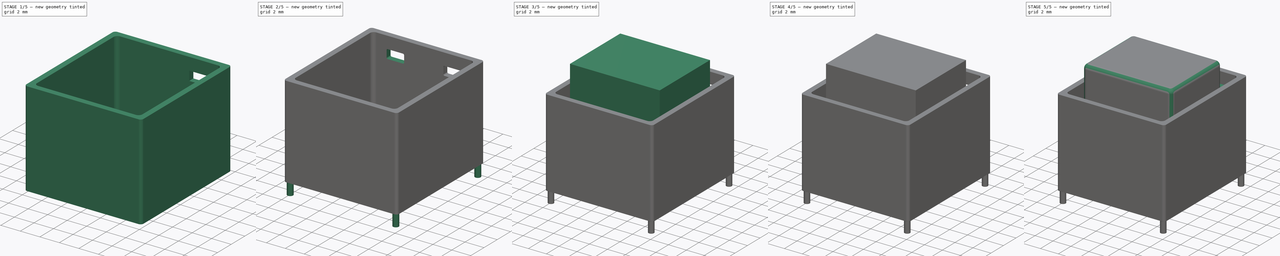
[diagram: build sequence overview — one tinted view per stage of 5, left to right]
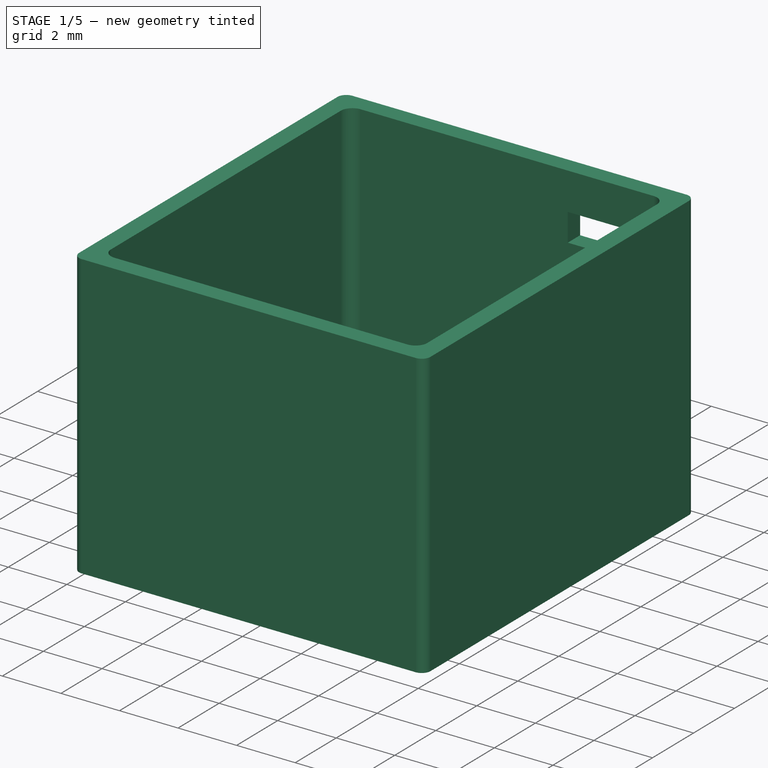
[diagram: stage 1 of 5 — iso view after this stage's code; geometry added in this stage tinted green]
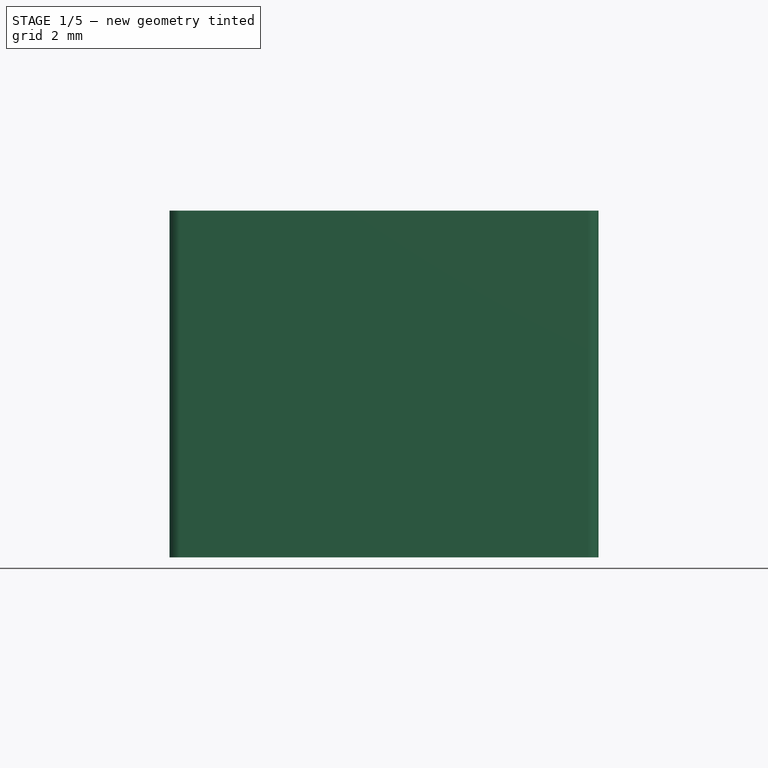
[diagram: stage 1 of 5 — front view after this stage's code; geometry added in this stage tinted green]
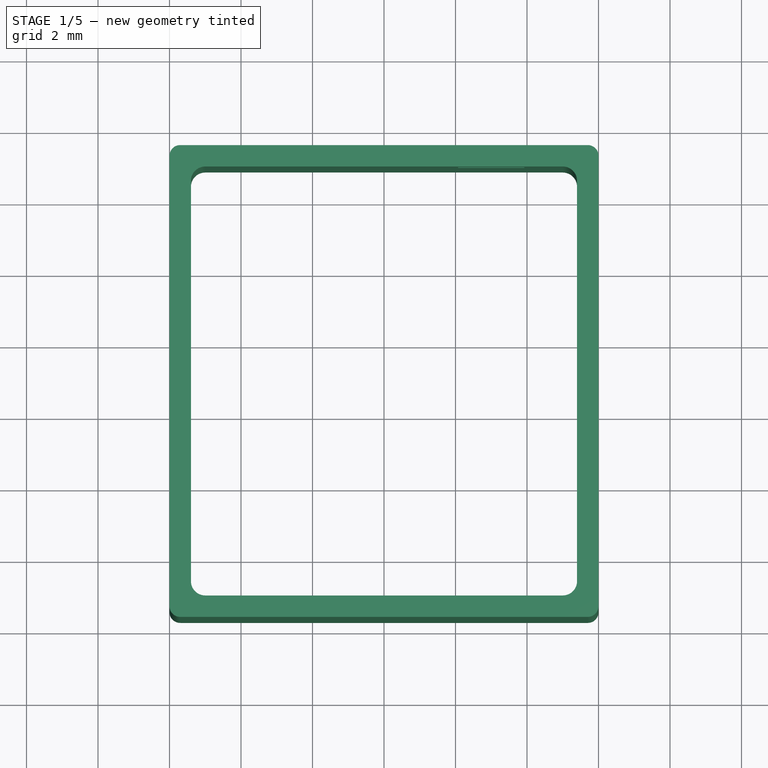
[diagram: stage 1 of 5 — top view after this stage's code; geometry added in this stage tinted green]
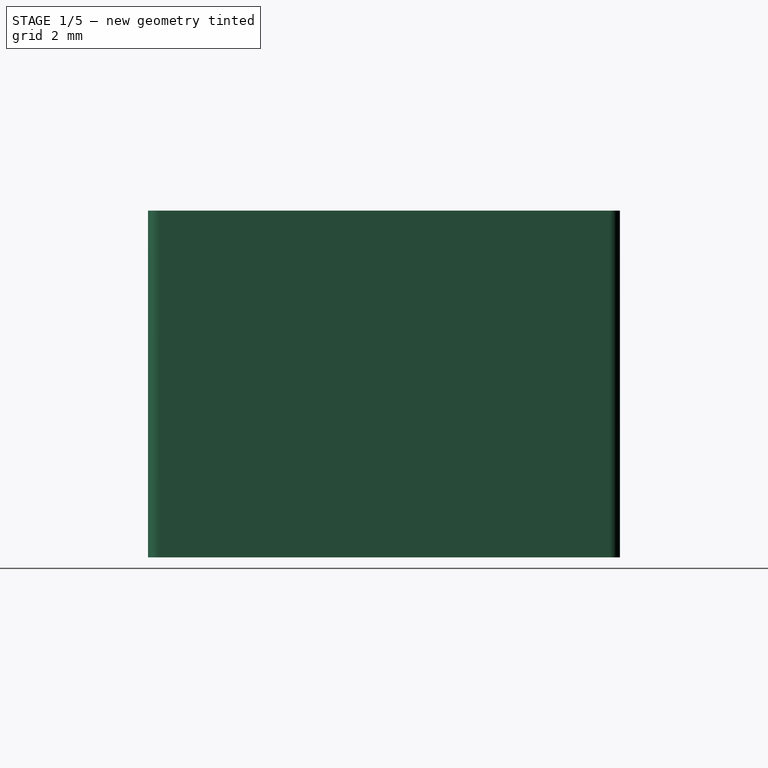
[diagram: stage 1 of 5 — right view after this stage's code; geometry added in this stage tinted green]
FCSTD DOCUMENT  (FreeCAD 0.18R16146 (Git))
Label: LED_switch_10x8
License: All rights reserved
LicenseURL: http://en.wikipedia.org/wiki/All_rights_reserved
objects: PartDesign::Fillet×9, Sketcher::SketchObject×8, PartDesign::Pad×5, PartDesign::Pocket×3, Part::Feature×2, PartDesign::Mirrored×2, PartDesign::Body×2, PartDesign::Plane×1
note: 40 computed .brp shape members not serialized (recipe doc carries the construction recipe); baked Part::Feature solids carry a one-line shape summary decoded from their .brp

FEATURE [PartDesign::Body] Body  label="Stößel"
  Group = -> [DatumPlane,Sketch,Pad,Sketch001,Pocket,Sketch002,Pocket001,Sketch003,Pad001,Fillet,Fillet001,Fillet002,Fillet003,Sketch004,Pad002,Mirrored,Fillet004]
  Origin = -> Origin
  Tip = -> Fillet004
FEATURE [Sketcher::SketchObject] Sketch005
  MapMode = 5
  Support = -> [XY_Plane001]
  sketch-geometry (9):
    g0: LineSegment StartX=-5.4 StartY=4.9 StartZ=0 EndX=5.4 EndY=4.9 EndZ=0
    g1: LineSegment StartX=5.4 StartY=4.9 StartZ=0 EndX=5.4 EndY=-7.1 EndZ=0
    g2: LineSegment StartX=5.4 StartY=-7.1 StartZ=0 EndX=-5.4 EndY=-7.1 EndZ=0
    g3: LineSegment StartX=-5.4 StartY=-7.1 StartZ=0 EndX=-5.4 EndY=4.9 EndZ=0
    g4: GeomPoint X=0 Y=-1.1 Z=0
    g5: LineSegment StartX=-6 StartY=5.5 StartZ=0 EndX=6 EndY=5.5 EndZ=0
    g6: LineSegment StartX=6 StartY=5.5 StartZ=0 EndX=6 EndY=-7.7 EndZ=0
    g7: LineSegment StartX=6 StartY=-7.7 StartZ=0 EndX=-6 EndY=-7.7 EndZ=0
    g8: LineSegment StartX=-6 StartY=-7.7 StartZ=0 EndX=-6 EndY=5.5 EndZ=0
  constraints (24):
    c: Coincident(g0,g1)
    c: Coincident(g1,g2)
    c: Coincident(g2,g3)
    c: Coincident(g3,g0)
    c: Horizontal(g0)
    c: Horizontal(g2)
    c: Vertical(g1)
    c: Vertical(g3)
    c: DistanceX(g0,g0) = 10.8
    c: DistanceY(g1,g1) = 12
    c: PointOnObject(g4,g-2)
    c: Symmetric(g0,g1,g4)
    c: DistanceY(g4,g-1) = 1.1
    c: Coincident(g5,g6)
    c: Coincident(g6,g7)
    c: Coincident(g7,g8)
    c: Coincident(g8,g5)
    c: Horizontal(g5)
    c: Horizontal(g7)
    c: Vertical(g6)
    c: Vertical(g8)
    c: Symmetric(g5,g6,g4)
    c: DistanceY(g0,g5) = 0.6
    c: DistanceX(g0,g5) = 0.6
FEATURE [PartDesign::Pad] Pad003  label="frame001"
  Length = 9.7
  Length2 = 100
  Profile = -> Sketch005
  Type = 0
FEATURE [PartDesign::Fillet] Fillet005
  Base = -> Pad003 [Edge1,Edge8,Edge5,Edge2]
  BaseFeature = -> Pad003
  Radius = 0.3
FEATURE [PartDesign::Fillet] Fillet006
  Base = -> Fillet005 [Edge33,Edge34,Edge35,Edge36]
  BaseFeature = -> Fillet005
  Radius = 0.4
FEATURE [Sketcher::SketchObject] Sketch006
  MapMode = 5
  Placement = pos=(0,5.5,0) rot=(0,0.707107,0.707107;3.14159rad)
  Support = -> [Fillet006]
  sketch-geometry (5):
    g0: LineSegment StartX=-3.925 StartY=8.425 StartZ=0 EndX=-2.075 EndY=8.425 EndZ=0
    g1: LineSegment StartX=-2.075 StartY=8.425 StartZ=0 EndX=-2.075 EndY=7.475 EndZ=0
    g2: LineSegment StartX=-2.075 StartY=7.475 StartZ=0 EndX=-3.925 EndY=7.475 EndZ=0
    g3: LineSegment StartX=-3.925 StartY=7.475 StartZ=0 EndX=-3.925 EndY=8.425 EndZ=0
    g4: GeomPoint X=-3 Y=7.95 Z=0
  constraints (13):
    c: Coincident(g0,g1)
    c: Coincident(g1,g2)
    c: Coincident(g2,g3)
    c: Coincident(g3,g0)
    c: Horizontal(g0)
    c: Horizontal(g2)
    c: Vertical(g1)
    c: Vertical(g3)
    c: DistanceY(g1,g1) = 0.95
    c: DistanceX(g0,g0) = 1.85
    c: Symmetric(g0,g1,g4)
    c: DistanceX(g4,g-1) = 3
    c: DistanceY(g-1,g4) = 7.95
FEATURE [PartDesign::Pocket] Pocket002
  BaseFeature = -> Fillet006
  Length = 5
  Length2 = 100
  Profile = -> Sketch006
  Type = 2
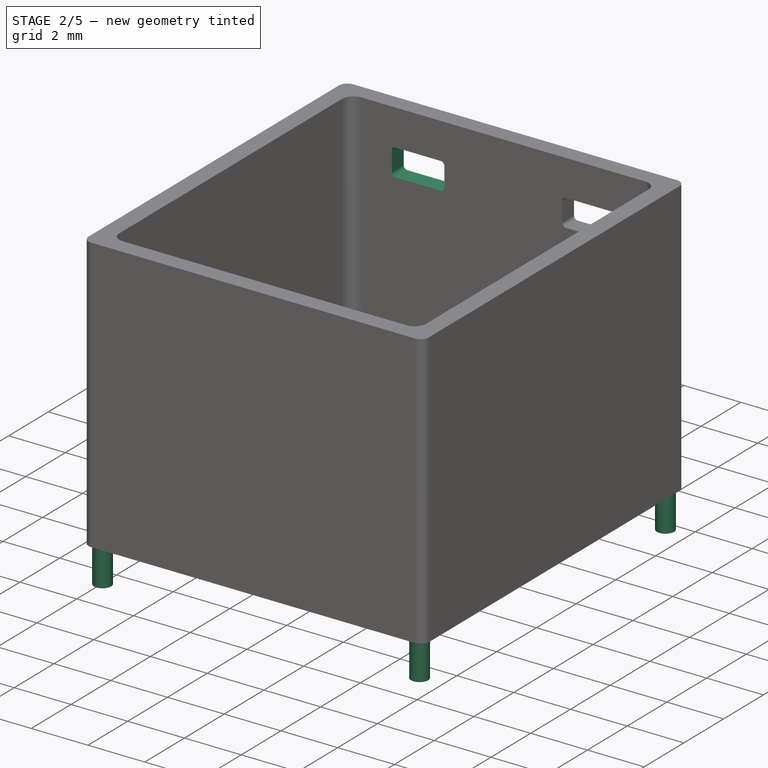
[diagram: stage 2 of 5 — iso view after this stage's code; geometry added in this stage tinted green]
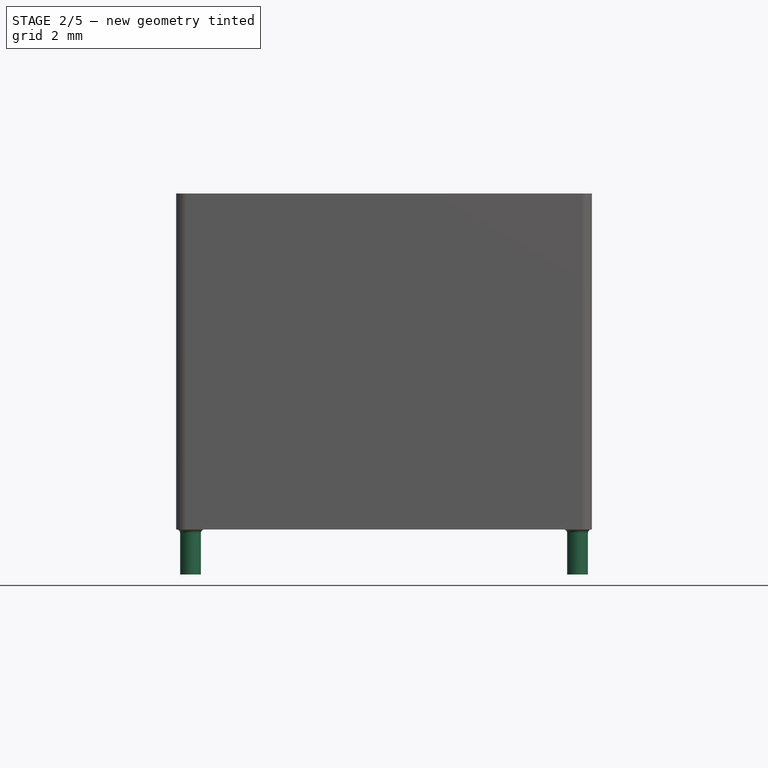
[diagram: stage 2 of 5 — front view after this stage's code; geometry added in this stage tinted green]
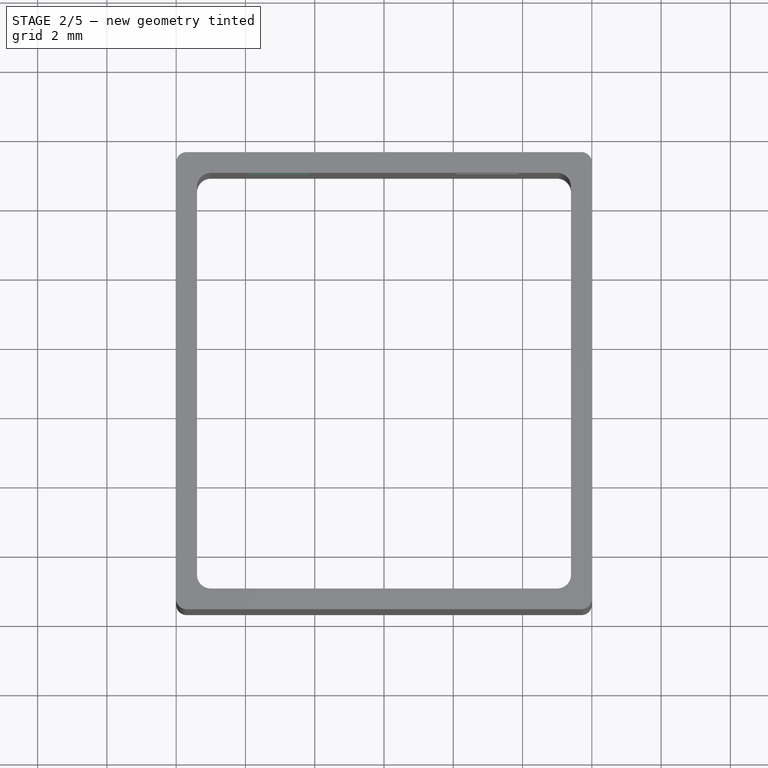
[diagram: stage 2 of 5 — top view after this stage's code; geometry added in this stage tinted green]
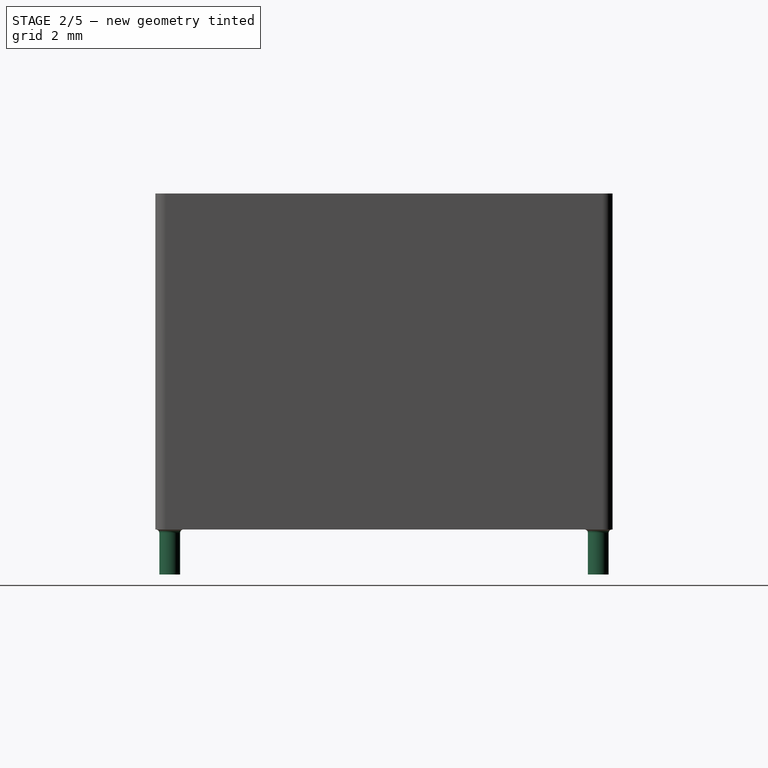
[diagram: stage 2 of 5 — right view after this stage's code; geometry added in this stage tinted green]
FEATURE [PartDesign::Mirrored] Mirrored001
  BaseFeature = -> Pocket002
  MirrorPlane = -> Sketch006 [V_Axis]
  Originals = -> [Pocket002]
FEATURE [PartDesign::Fillet] Fillet007
  Base = -> Mirrored001 [Edge68,Edge67,Edge70,Edge69,Edge71,Edge72,Edge66,Edge65]
  BaseFeature = -> Mirrored001
  Radius = 0.13
FEATURE [Sketcher::SketchObject] Sketch007
  ExternalGeometry = -> [Fillet007]
  MapMode = 5
  Placement = pos=(0,0,0) rot=(1,0,0;3.14159rad)
  Support = -> [Fillet007]
  sketch-geometry (9):
    g0: LineSegment [constr] StartX=-5.91213 StartY=7.61213 StartZ=0 EndX=-5 EndY=6.7 EndZ=0
    g1: LineSegment [constr] StartX=5.91213 StartY=7.61213 StartZ=0 EndX=5 EndY=6.7 EndZ=0
    g2: LineSegment [constr] StartX=-5 StartY=-4.5 StartZ=0 EndX=-5.91213 EndY=-5.41213 EndZ=0
    g3: LineSegment [constr] StartX=5 StartY=-4.5 StartZ=0 EndX=5.91213 EndY=-5.41213 EndZ=0
    g4: Circle CenterX=-5.58686 CenterY=7.28686 CenterZ=0 NormalX=0 NormalY=0 NormalZ=1 AngleXU=0 Radius=0.3
    g5: Circle CenterX=5.58686 CenterY=7.28686 CenterZ=0 NormalX=0 NormalY=0 NormalZ=1 AngleXU=0 Radius=0.3
    g6: Circle CenterX=-5.58686 CenterY=-5.08686 CenterZ=0 NormalX=0 NormalY=0 NormalZ=1 AngleXU=0 Radius=0.3
    g7: Circle CenterX=5.58686 CenterY=-5.08686 CenterZ=0 NormalX=0 NormalY=0 NormalZ=1 AngleXU=0 Radius=0.3
    g8: LineSegment [constr] StartX=5.58686 StartY=7.28686 StartZ=0 EndX=5.7 EndY=7.4 EndZ=0
  constraints (26):
    c: PointOnObject(g0,g-3)
    c: Coincident(g0,g-4)
    c: PointOnObject(g-3,g0)
    c: PointOnObject(g-6,g1)
    c: Coincident(g-5,g1)
    c: Coincident(g3,g-7)
    c: Coincident(g2,g-9)
    c: PointOnObject(g2,g-10)
    c: PointOnObject(g3,g-8)
    c: PointOnObject(g1,g-6)
    c: PointOnObject(g-8,g3)
    c: PointOnObject(g-10,g2)
    c: PointOnObject(g4,g0)
    c: Distance(g-3,g4) = 0.16
    c: Diameter(g4) = 0.6
    c: PointOnObject(g5,g1)
    c: PointOnObject(g6,g2)
    c: PointOnObject(g7,g3)
    c: Equal(g7,g6)
    c: Equal(g4,g7)
    c: Equal(g5,g4)
    c: Coincident(g8,g5)
    c: Coincident(g8,g-6)
    c: Distance(g8,g5) = 0.16
    c: Distance(g7,g-8) = 0.16
    c: Distance(g6,g-10) = 0.16
FEATURE [PartDesign::Pad] Pad004
  BaseFeature = -> Fillet007
  Length = 1.3
  Length2 = 100
  Profile = -> Sketch007
  Type = 0
FEATURE [PartDesign::Fillet] Fillet008
  Base = -> Pad004 [Edge55,Edge45,Edge46,Edge47]
  BaseFeature = -> Pad004
  Radius = 0.1
FEATURE [PartDesign::Body] Body001  label="frame"
  Group = -> [Sketch005,Pad003,Fillet005,Fillet006,Sketch006,Pocket002,Mirrored001,Fillet007,Sketch007,Pad004,Fillet008]
  Origin = -> Origin001
  Tip = -> Fillet008
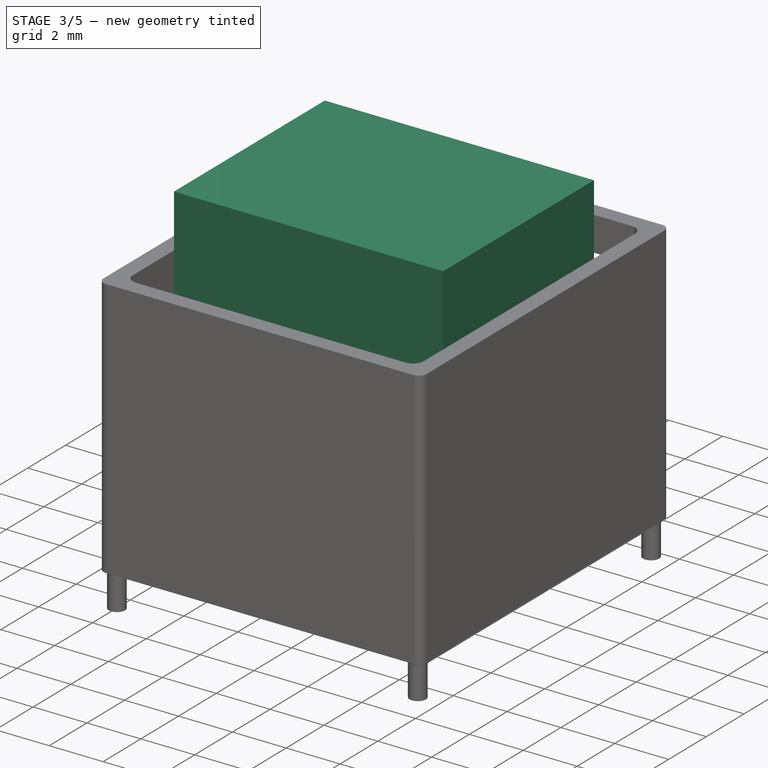
[diagram: stage 3 of 5 — iso view after this stage's code; geometry added in this stage tinted green]
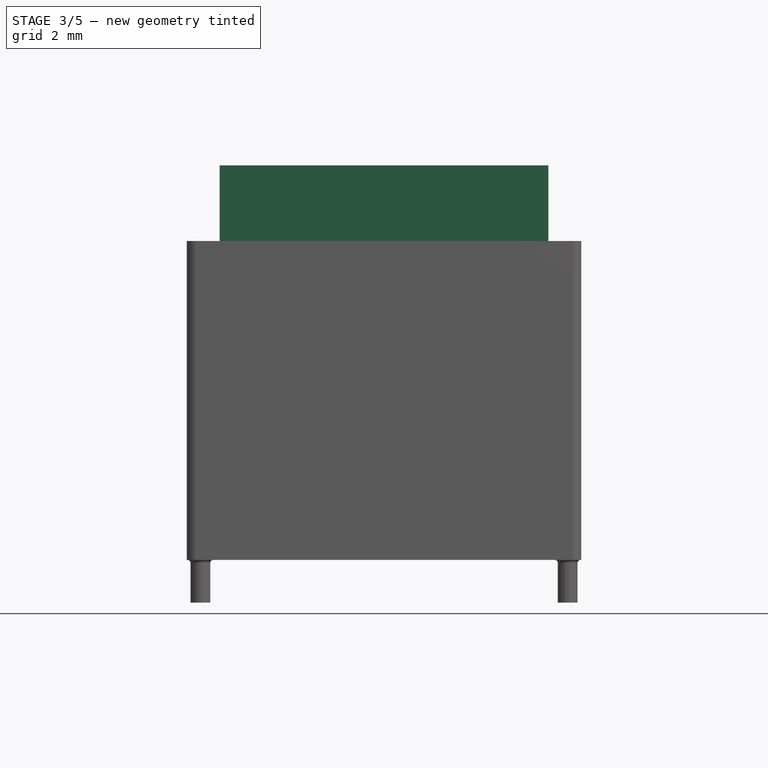
[diagram: stage 3 of 5 — front view after this stage's code; geometry added in this stage tinted green]
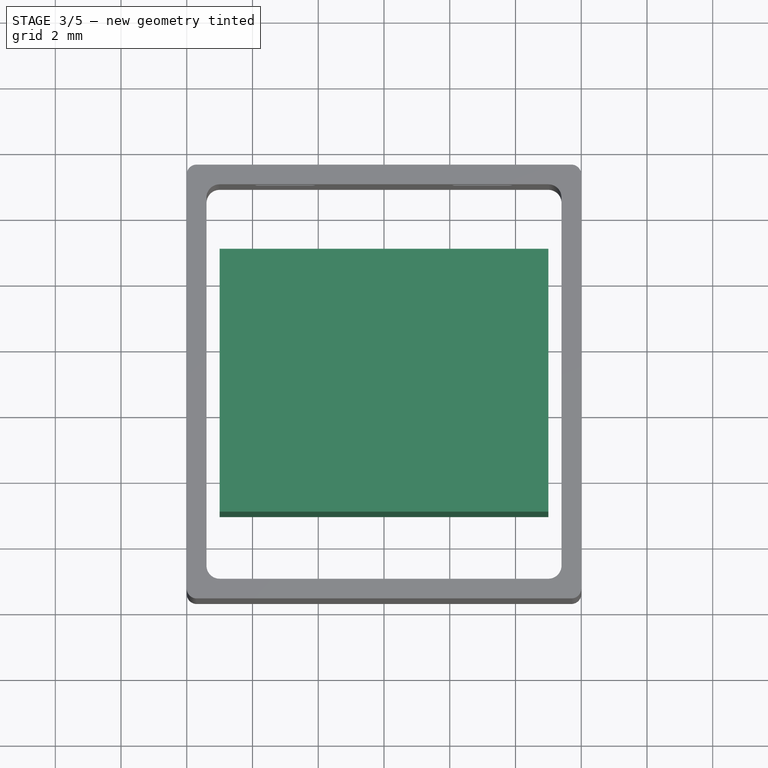
[diagram: stage 3 of 5 — top view after this stage's code; geometry added in this stage tinted green]
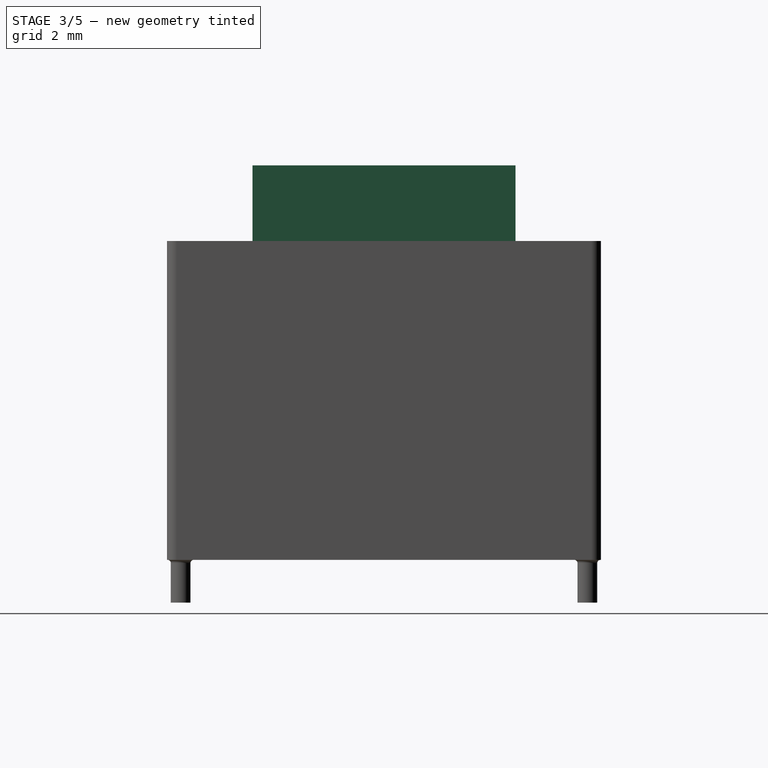
[diagram: stage 3 of 5 — right view after this stage's code; geometry added in this stage tinted green]
FEATURE [Part::Feature] Part__Feature  label="LED_WS2812_PLCC6_50x50mm_P16mm"
  shape: bbox 5.4 x 5 x 1.85 mm, 94 faces (baked)
FEATURE [PartDesign::Plane] DatumPlane  label="UnterkanteFaceplate"
  Length = 24
  MapMode = 2
  Placement = pos=(0,0,10) rot=(0,0,1;0rad)
  ResizeMode = 0
  Width = 24
FEATURE [Sketcher::SketchObject] Sketch
  MapMode = 5
  Placement = pos=(0,0,10) rot=(0,0,1;0rad)
  Support = -> [DatumPlane]
  sketch-geometry (5):
    g0: LineSegment StartX=-5 StartY=2.9 StartZ=0 EndX=5 EndY=2.9 EndZ=0
    g1: LineSegment StartX=5 StartY=2.9 StartZ=0 EndX=5 EndY=-5.1 EndZ=0
    g2: LineSegment StartX=5 StartY=-5.1 StartZ=0 EndX=-5 EndY=-5.1 EndZ=0
    g3: LineSegment StartX=-5 StartY=-5.1 StartZ=0 EndX=-5 EndY=2.9 EndZ=0
    g4: GeomPoint X=0 Y=-1.1 Z=0
  constraints (13):
    c: Coincident(g0,g1)
    c: Coincident(g1,g2)
    c: Coincident(g2,g3)
    c: Coincident(g3,g0)
    c: Horizontal(g0)
    c: Horizontal(g2)
    c: Vertical(g1)
    c: Vertical(g3)
    c: DistanceY(g1,g1) = 8
    c: DistanceX(g0,g0) = 10
    c: PointOnObject(g4,g-2)
    c: DistanceY(g4,g-1) = 1.1
    c: Symmetric(g0,g1,g4)
FEATURE [Part::Feature] Part__Feature001  label="SW_SPST_CK_RS282G05A3"
  Placement = pos=(0,-4.5,0) rot=(0,0,1;0rad)
  shape: bbox 8 x 3.5 x 2.5 mm, 109 faces (baked)
FEATURE [PartDesign::Pad] Pad
  Length = 2
  Length2 = 7.5
  Placement = pos=(0,0,10) rot=(0,0,1;0rad)
  Profile = -> Sketch
  Reversed = true
  Type = 4
FEATURE [Sketcher::SketchObject] Sketch001
  ExternalGeometry = -> [Pad]
  MapMode = 5
  Placement = pos=(0,0,2.5) rot=(1,0,0;3.14159rad)
  Support = -> [Pad]
  sketch-geometry (5):
    g0: GeomPoint X=0 Y=1.1 Z=0
    g1: LineSegment StartX=-4.6 StartY=4.5 StartZ=0 EndX=4.6 EndY=4.5 EndZ=0
    g2: LineSegment StartX=4.6 StartY=4.5 StartZ=0 EndX=4.6 EndY=-2.5 EndZ=0
    g3: LineSegment StartX=4.6 StartY=-2.5 StartZ=0 EndX=-4.6 EndY=-2.5 EndZ=0
    g4: LineSegment StartX=-4.6 StartY=-2.5 StartZ=0 EndX=-4.6 EndY=4.5 EndZ=0
  constraints (12):
    c: Symmetric(g-3,g-4,g0)
    c: Coincident(g1,g2)
    c: Coincident(g2,g3)
    c: Coincident(g3,g4)
    c: Coincident(g4,g1)
    c: Horizontal(g1)
    c: Vertical(g2)
    c: Vertical(g4)
    c: DistanceY(g1,g-3) = 0.6
    c: DistanceY(g-4,g2) = 0.4
    c: Symmetric(g3,g2,g-2)
    c: DistanceX(g2,g-4) = 0.4
FEATURE [PartDesign::Pocket] Pocket
  BaseFeature = -> Pad
  Length = 8
  Length2 = 100
  Placement = pos=(0,0,10) rot=(0,0,1;0rad)
  Profile = -> Sketch001
  Type = 0
FEATURE [Sketcher::SketchObject] Sketch002
  ExternalGeometry = -> [Pocket]
  MapMode = 5
  Placement = pos=(0,0,2.5) rot=(1,0,0;3.14159rad)
  Support = -> [Pocket]
  sketch-geometry (8):
    g0: LineSegment StartX=-4.6 StartY=4.5 StartZ=0 EndX=-5 EndY=4.5 EndZ=0
    g1: LineSegment StartX=-5 StartY=4.5 StartZ=0 EndX=-5 EndY=-2.9 EndZ=0
    g2: LineSegment StartX=-5 StartY=-2.9 StartZ=0 EndX=5 EndY=-2.9 EndZ=0
    g3: LineSegment StartX=5 StartY=-2.9 StartZ=0 EndX=5 EndY=4.5 EndZ=0
    g4: LineSegment StartX=5 StartY=4.5 StartZ=0 EndX=4.6 EndY=4.5 EndZ=0
    g5: LineSegment StartX=-4.6 StartY=4.5 StartZ=0 EndX=-4.6 EndY=-2.5 EndZ=0
    g6: LineSegment StartX=-4.6 StartY=-2.5 StartZ=0 EndX=4.6 EndY=-2.5 EndZ=0
    g7: LineSegment StartX=4.6 StartY=-2.5 StartZ=0 EndX=4.6 EndY=4.5 EndZ=0
  constraints (18):
    c: Coincident(g0,g-6)
    c: PointOnObject(g0,g-4)
    c: Horizontal(g0)
    c: Coincident(g0,g1)
    c: Coincident(g1,g-4)
    c: Coincident(g1,g2)
    c: Coincident(g2,g-7)
    c: Coincident(g2,g3)
    c: PointOnObject(g3,g-7)
    c: Coincident(g3,g4)
    c: Coincident(g4,g-8)
    c: Horizontal(g4)
    c: Coincident(g0,g5)
    c: Coincident(g5,g-5)
    c: Coincident(g5,g6)
    c: Coincident(g6,g-8)
    c: Coincident(g6,g7)
    c: Coincident(g7,g4)
FEATURE [PartDesign::Pocket] Pocket001
  BaseFeature = -> Pocket
  Length = 5
  Length2 = 100
  Placement = pos=(0,0,10) rot=(0,0,1;0rad)
  Profile = -> Sketch002
  Type = 0
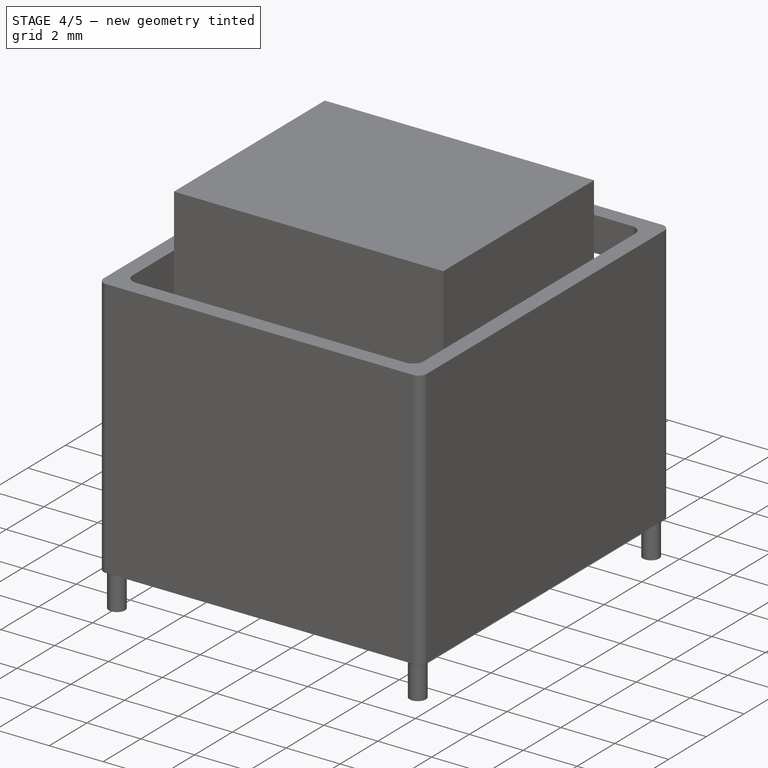
[diagram: stage 4 of 5 — iso view after this stage's code; geometry added in this stage tinted green]
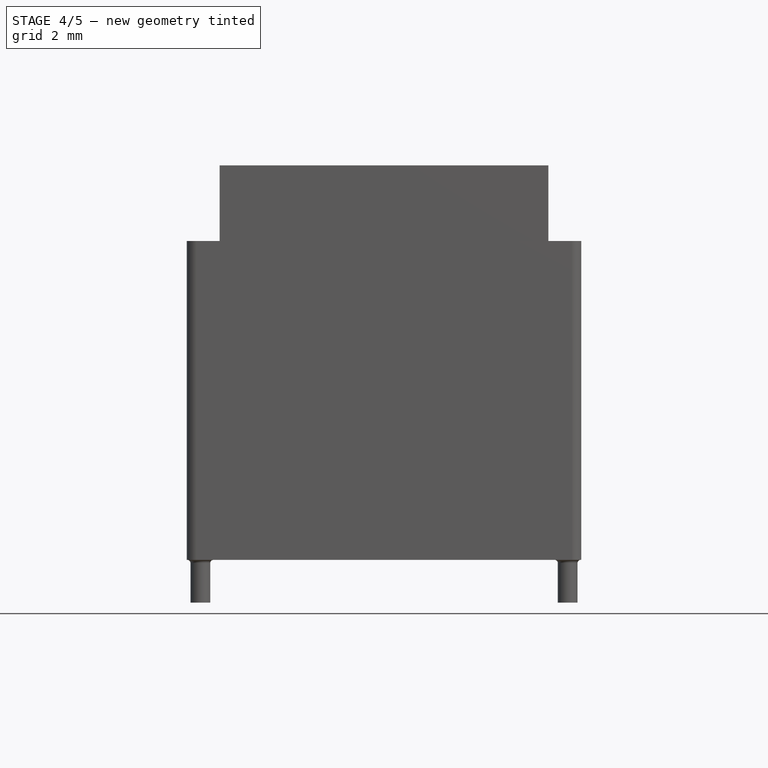
[diagram: stage 4 of 5 — front view after this stage's code; geometry added in this stage tinted green]
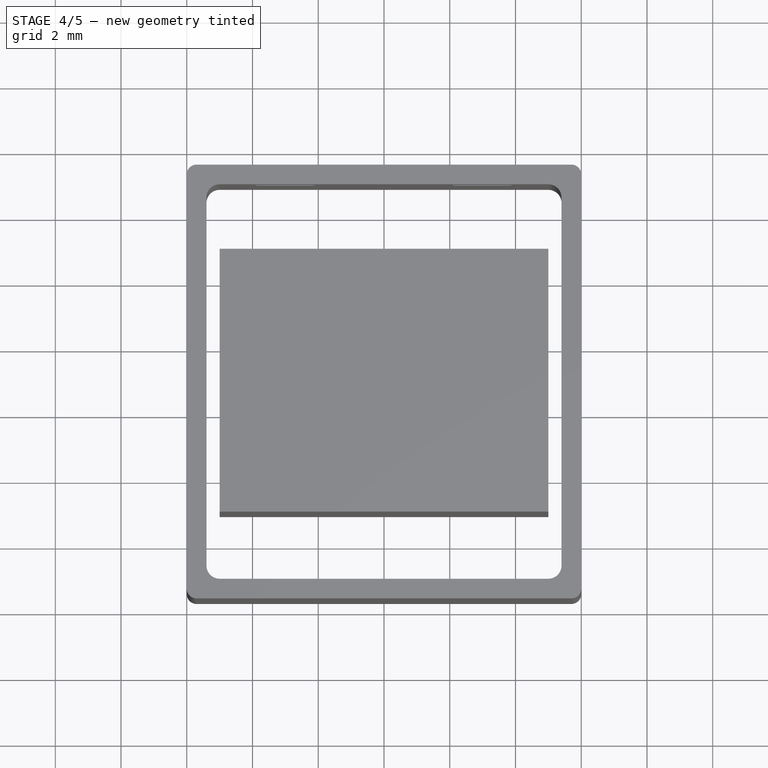
[diagram: stage 4 of 5 — top view after this stage's code; geometry added in this stage tinted green]
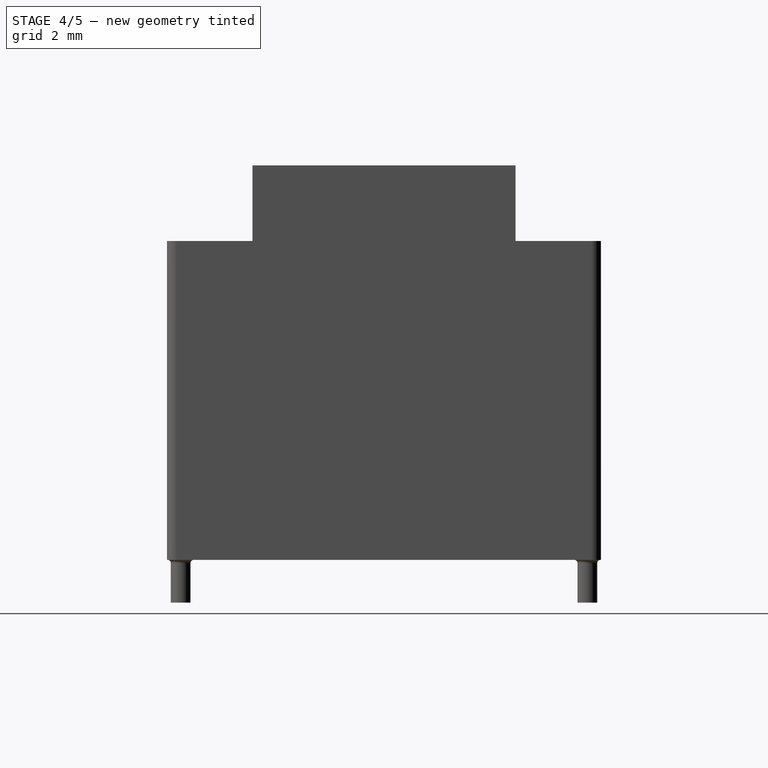
[diagram: stage 4 of 5 — right view after this stage's code; geometry added in this stage tinted green]
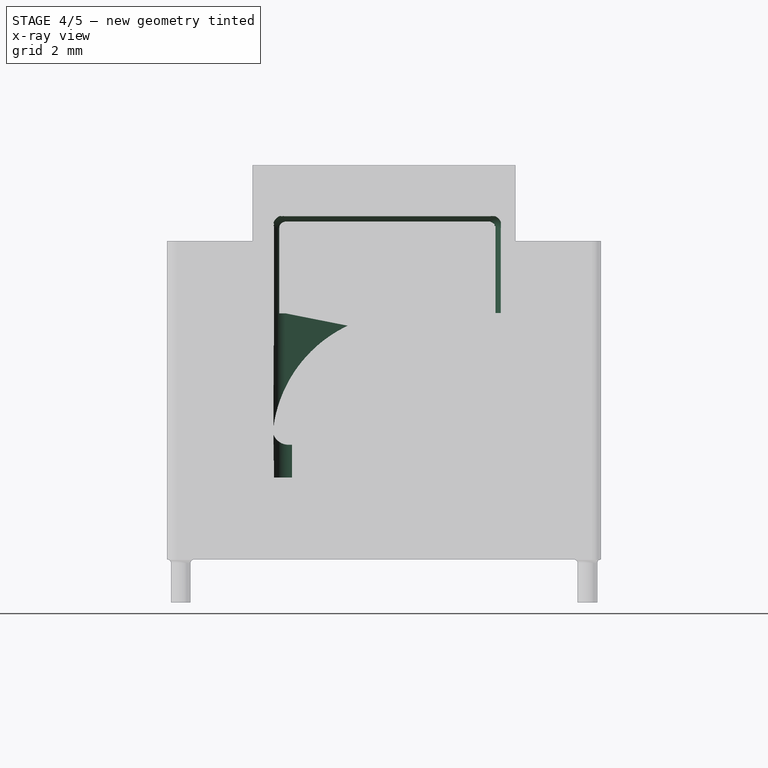
[diagram: stage 4 of 5 — x-ray composite at the right view; earlier geometry ghosted, this stage's added geometry solid]
FEATURE [Sketcher::SketchObject] Sketch003
  ExternalGeometry = -> [Pocket001]
  MapMode = 5
  Placement = pos=(0,-4.5,10) rot=(0,0.707107,0.707107;3.14159rad)
  Support = -> [Pocket001]
  sketch-geometry (5):
    g0: LineSegment StartX=-1.5 StartY=-6.5 StartZ=0 EndX=1.5 EndY=-6.5 EndZ=0
    g1: LineSegment StartX=1.5 StartY=-6.5 StartZ=0 EndX=1.5 EndY=-7.5 EndZ=0
    g2: LineSegment StartX=1.5 StartY=-7.5 StartZ=0 EndX=-1.5 EndY=-7.5 EndZ=0
    g3: LineSegment StartX=-1.5 StartY=-7.5 StartZ=0 EndX=-1.5 EndY=-6.5 EndZ=0
    g4: GeomPoint X=0 Y=-7 Z=0
  constraints (12):
    c: Coincident(g0,g1)
    c: Coincident(g1,g2)
    c: Coincident(g2,g3)
    c: Coincident(g3,g0)
    c: Horizontal(g0)
    c: Vertical(g1)
    c: Vertical(g3)
    c: DistanceY(g1,g1) = 1
    c: DistanceX(g0,g0) = 3
    c: PointOnObject(g4,g-2)
    c: Symmetric(g0,g1,g4)
    c: Tangent(g2,g-3)
FEATURE [PartDesign::Pad] Pad001  label="Lasche Btn"
  BaseFeature = -> Pocket001
  Length = 0.6
  Length2 = 100
  Placement = pos=(0,0,10) rot=(0,0,1;0rad)
  Profile = -> Sketch003
  Type = 0
FEATURE [PartDesign::Fillet] Fillet
  Base = -> Pad001 [Edge37,Edge36,Edge38]
  BaseFeature = -> Pad001
  Placement = pos=(0,0,10) rot=(0,0,1;0rad)
  Radius = 0.5
FEATURE [PartDesign::Fillet] Fillet001
  Base = -> Fillet [Edge25,Edge36]
  BaseFeature = -> Fillet
  Placement = pos=(0,0,10) rot=(0,0,1;0rad)
  Radius = 4
FEATURE [PartDesign::Fillet] Fillet002  label="Fillet002innen"
  Base = -> Fillet001 [Edge27,Edge29,Edge26,Edge53,Edge23,Edge52,Edge51,Edge22,Edge24]
  BaseFeature = -> Fillet001
  Placement = pos=(0,0,10) rot=(0,0,1;0rad)
  Radius = 0.4
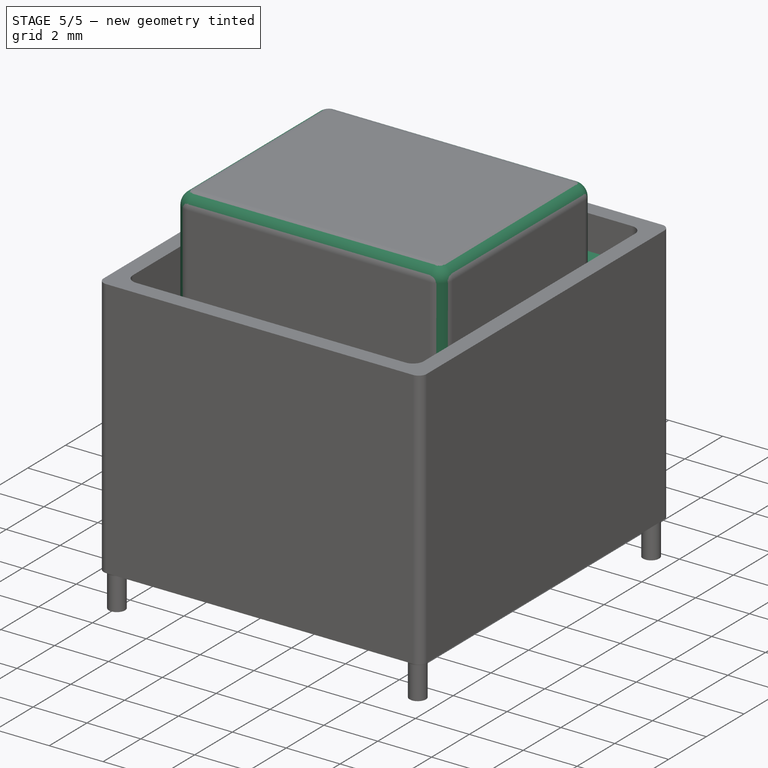
[diagram: stage 5 of 5 — iso view after this stage's code; geometry added in this stage tinted green]
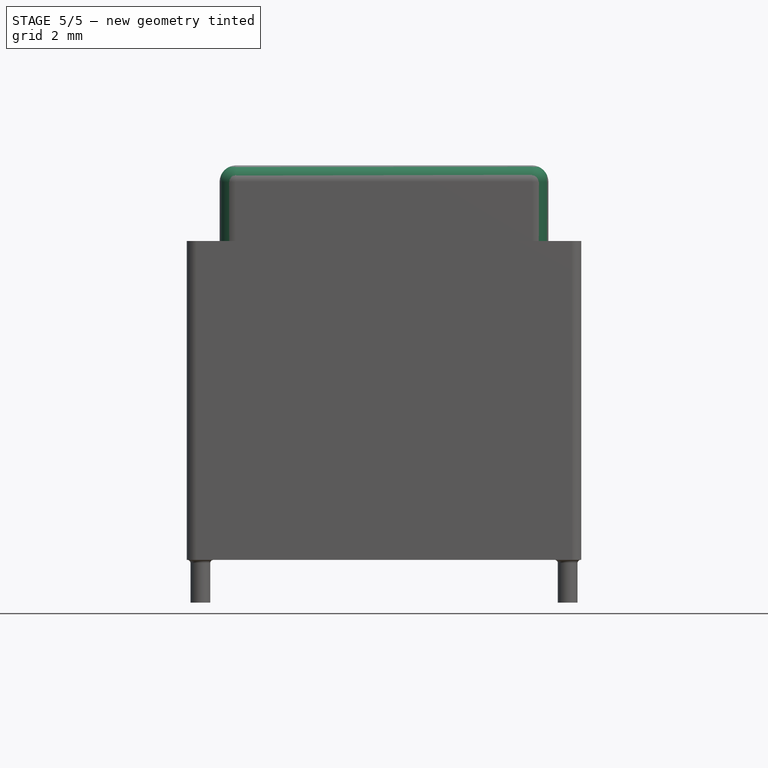
[diagram: stage 5 of 5 — front view after this stage's code; geometry added in this stage tinted green]
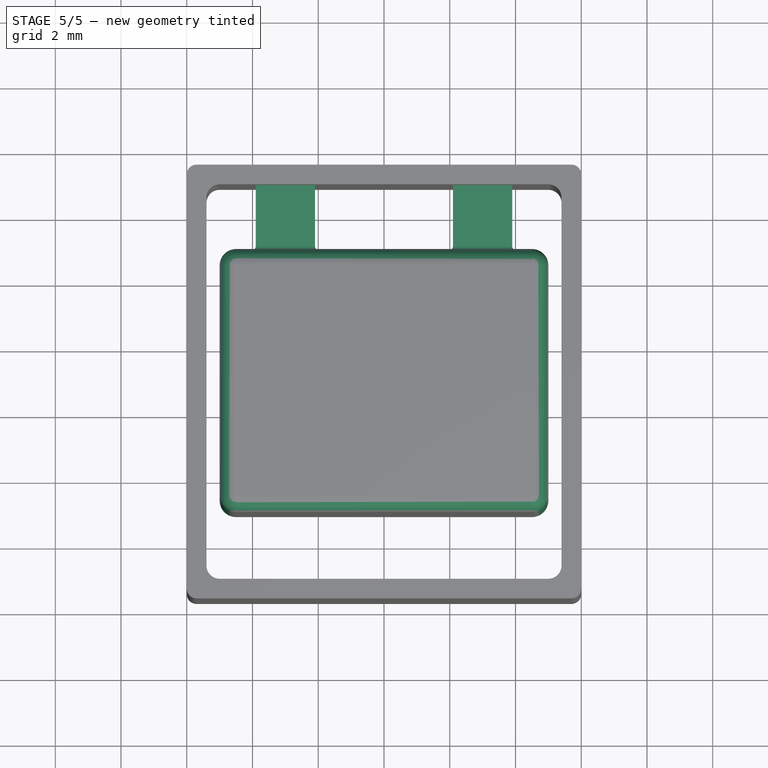
[diagram: stage 5 of 5 — top view after this stage's code; geometry added in this stage tinted green]
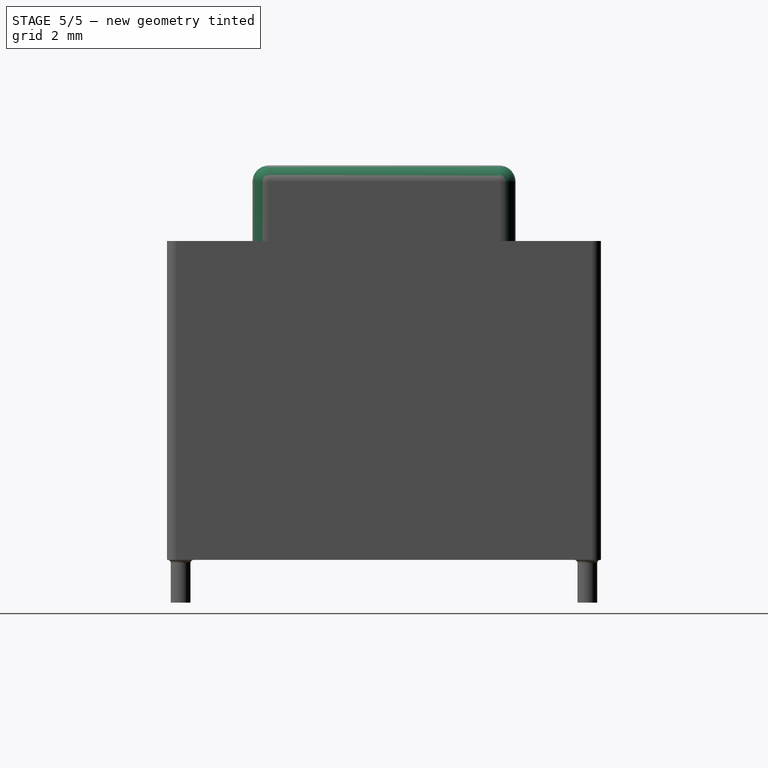
[diagram: stage 5 of 5 — right view after this stage's code; geometry added in this stage tinted green]
FEATURE [PartDesign::Fillet] Fillet003  label="Fillet003außen"
  Base = -> Fillet002 [Edge58,Edge59,Edge57,Edge62,Edge80,Edge37,Edge38,Edge36]
  BaseFeature = -> Fillet002
  Placement = pos=(0,0,10) rot=(0,0,1;0rad)
  Radius = 0.5
FEATURE [Sketcher::SketchObject] Sketch004
  ExternalGeometry = -> [Fillet003]
  MapMode = 5
  Placement = pos=(0,2.9,10) rot=(0,0.707107,0.707107;3.14159rad)
  Support = -> [Fillet003]
  sketch-geometry (5):
    g0: LineSegment StartX=-3.9 StartY=-1.6 StartZ=0 EndX=-2.1 EndY=-1.6 EndZ=0
    g1: LineSegment StartX=-2.1 StartY=-1.6 StartZ=0 EndX=-2.1 EndY=-2.5 EndZ=0
    g2: LineSegment StartX=-2.1 StartY=-2.5 StartZ=0 EndX=-3.9 EndY=-2.5 EndZ=0
    g3: LineSegment StartX=-3.9 StartY=-2.5 StartZ=0 EndX=-3.9 EndY=-1.6 EndZ=0
    g4: GeomPoint X=-3 Y=-2.05 Z=0
  constraints (12):
    c: Coincident(g0,g1)
    c: Coincident(g1,g2)
    c: Coincident(g2,g3)
    c: Coincident(g3,g0)
    c: Horizontal(g0)
    c: Vertical(g1)
    c: Vertical(g3)
    c: Symmetric(g0,g1,g4)
    c: DistanceX(g0,g0) = 1.8
    c: DistanceY(g1,g1) = 0.9
    c: DistanceX(g4,g-1) = 3
    c: Tangent(g2,g-3)
FEATURE [PartDesign::Pad] Pad002  label="Lasche"
  BaseFeature = -> Fillet003
  Length = 2.6
  Length2 = 100
  Placement = pos=(0,0,10) rot=(0,0,1;0rad)
  Profile = -> Sketch004
  Type = 0
FEATURE [PartDesign::Mirrored] Mirrored
  BaseFeature = -> Pad002
  MirrorPlane = -> Sketch004 [V_Axis]
  Originals = -> [Pad002]
  Placement = pos=(0,0,10) rot=(0,0,1;0rad)
FEATURE [PartDesign::Fillet] Fillet004
  Base = -> Mirrored [Edge29,Edge27,Edge30,Edge28,Edge32,Edge33,Edge31,Edge34]
  BaseFeature = -> Mirrored
  Placement = pos=(0,0,10) rot=(0,0,1;0rad)
  Radius = 0.15
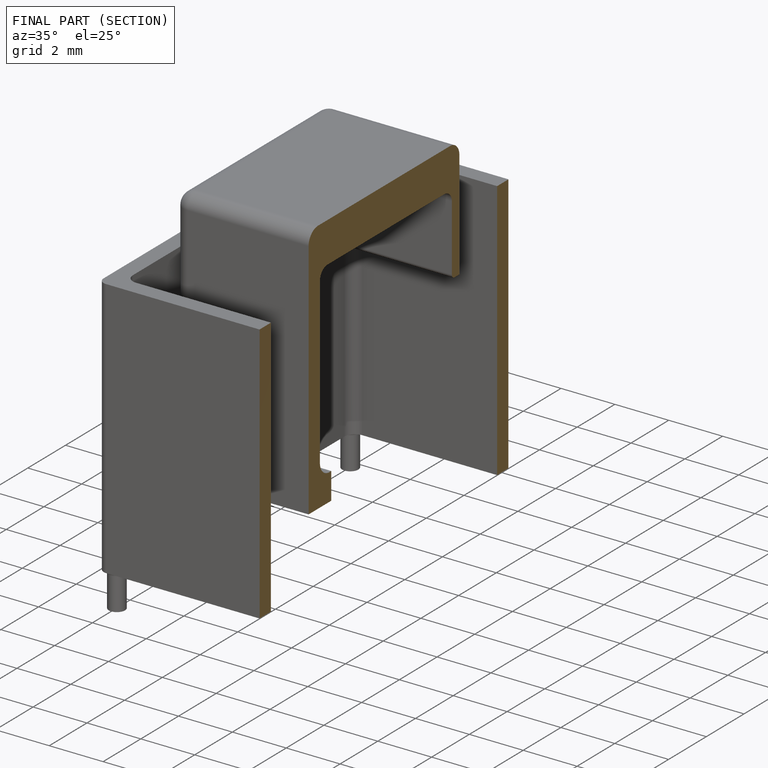
[diagram: finished part — half-section view (interior)]
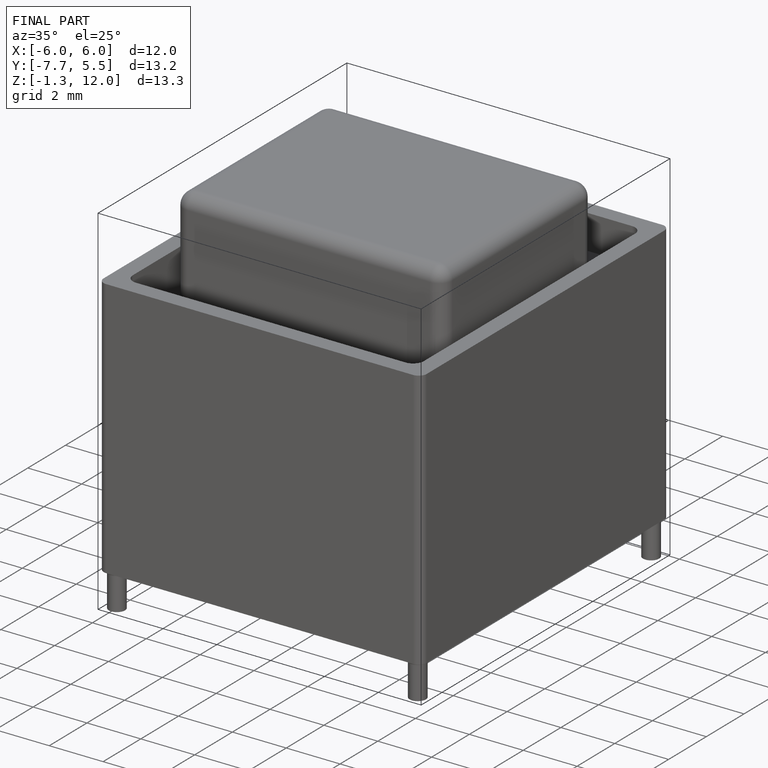
[diagram: finished part — iso view with bounding-box wireframe]
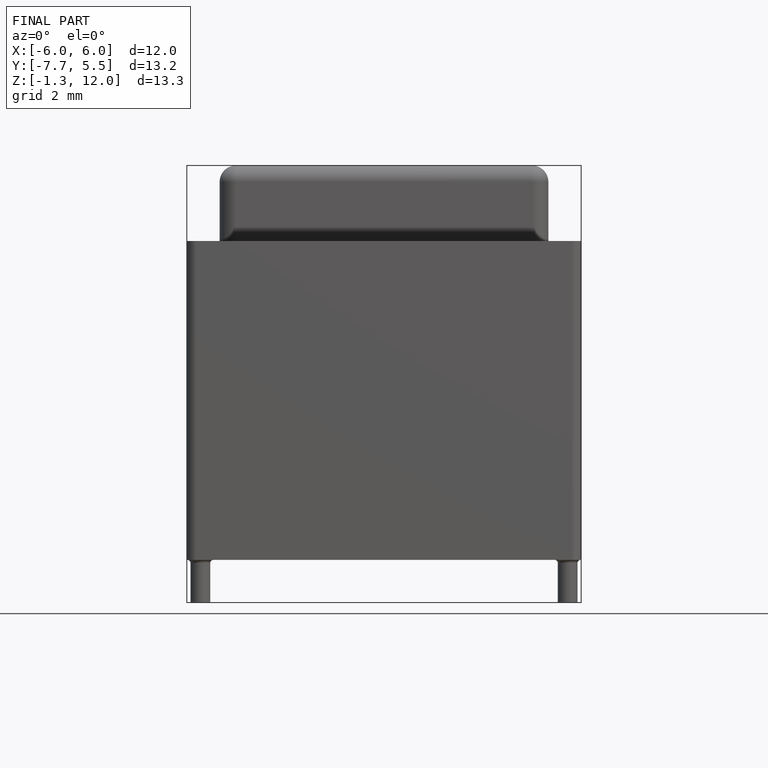
[diagram: finished part — front view with bounding-box wireframe]
